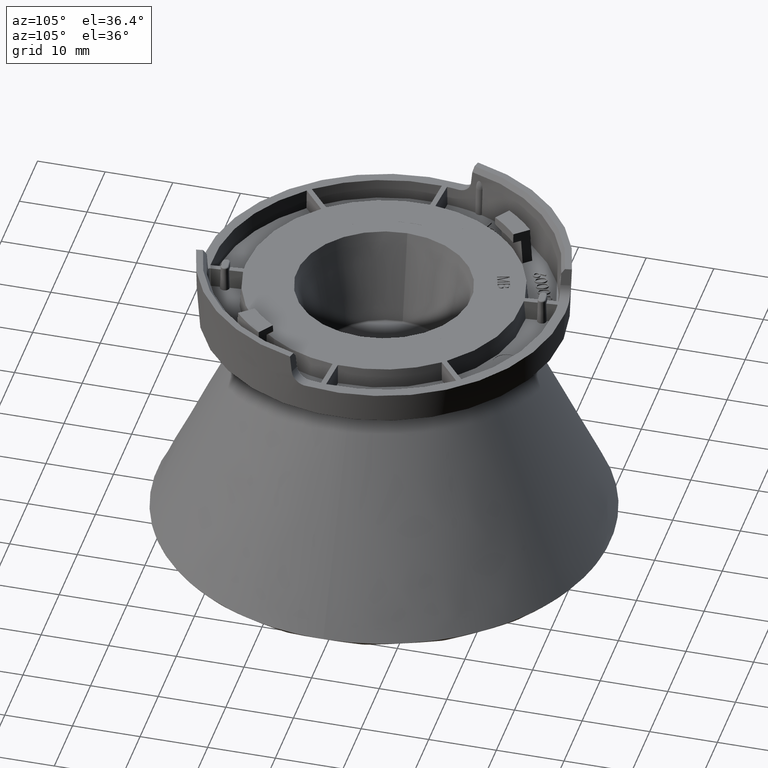
[diagram: clean part render]
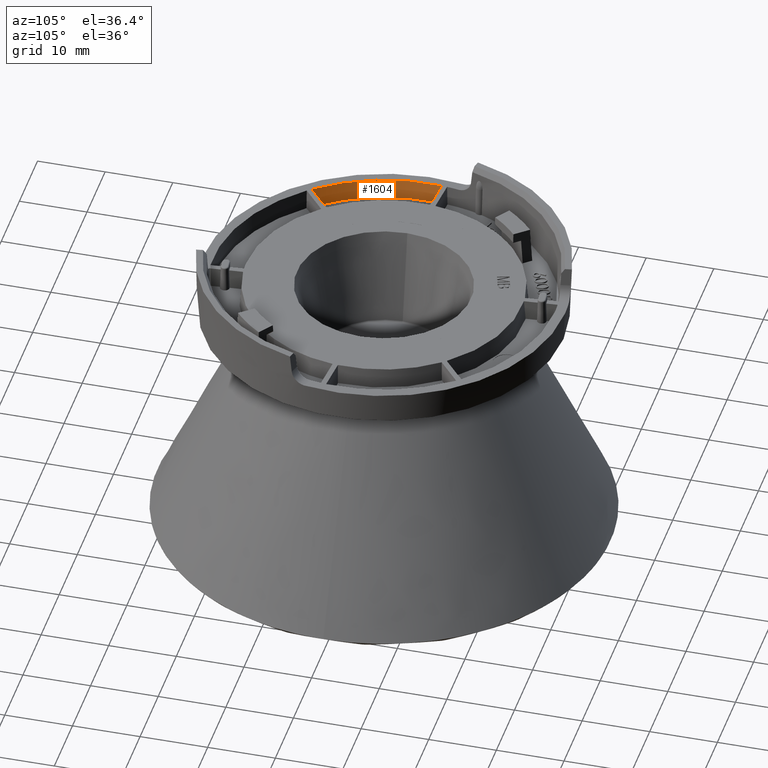
[diagram: same view with one face highlighted and labeled with its STEP entity id]
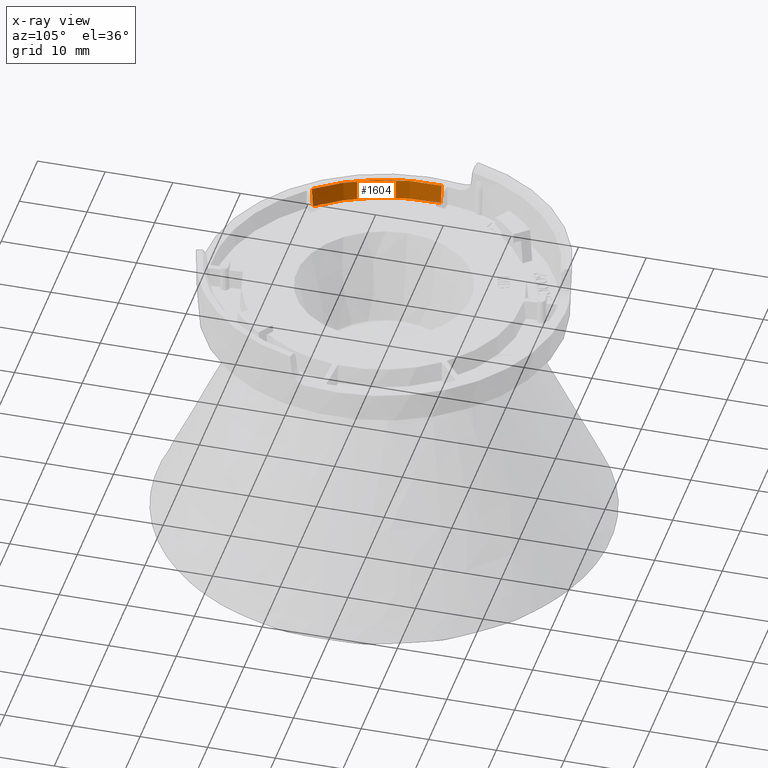
[diagram: x-ray of the same camera — body ghosted, the highlighted face saturated]
A machine part, auxiliary view. The second image highlights one B-rep face of the part: STEP entity #1604.
The next image is the same camera in x-ray: the body ghosted, the highlighted face saturated — about 0% of this face is hidden behind the body in this view.
In plain terms, the highlighted conical surface has half-angle 2.5 deg.
Its self-contained STEP definition (entity closure, byte-faithful):
#430 = B_SPLINE_CURVE_WITH_KNOTS ( 'NONE', 3,
 ( #24405, #5391, #673, #17312 ),
 .UNSPECIFIED., .F., .F.,
 ( 4, 4 ),
 ( 2.003185753689083900E-007, 0.003004968843584663700 ),
 .UNSPECIFIED. ) ;
#673 = CARTESIAN_POINT ( 'NONE',  ( 25.14670301037927300, -1.763469225120719400, -1.000003342401506700 ) ) ;
#780 = AXIS2_PLACEMENT_3D ( 'NONE', #10777, #27397, #13186 ) ;
#1604 = ADVANCED_FACE ( 'NONE', ( #15653 ), #8595, .F. ) ;
#3535 = AXIS2_PLACEMENT_3D ( 'NONE', #25176, #6174, #17996 ) ;
#4629 = DIRECTION ( 'NONE',  ( -0.0000000000000000000, -0.0000000000000000000, -1.000000000000000000 ) ) ;
#5091 = ORIENTED_EDGE ( 'NONE', *, *, #24614, .F. ) ;
#5181 = CIRCLE ( 'NONE', #780, 25.12111390044120900 ) ;
#5391 = CARTESIAN_POINT ( 'NONE',  ( 25.10562010438200200, -1.724820774602280300, -2.000003365819040400 ) ) ;
#5853 = ORIENTED_EDGE ( 'NONE', *, *, #16216, .F. ) ;
#6174 = DIRECTION ( 'NONE',  ( 0.0000000000000000000, -3.481099576323616500E-016, 1.000000000000000000 ) ) ;
#7207 = VERTEX_POINT ( 'NONE', #15486 ) ;
#8173 = CARTESIAN_POINT ( 'NONE',  ( 19.57600347840654800, 15.81288257540236600, -2.000003365819035000 ) ) ;
#8595 = CONICAL_SURFACE ( 'NONE', #3535, 25.12111390044120900, 0.04363323129985476800 ) ;
#9148 = CIRCLE ( 'NONE', #11269, 25.25209672916673000 ) ;
#9692 = VERTEX_POINT ( 'NONE', #11353 ) ;
#10563 = CARTESIAN_POINT ( 'NONE',  ( 19.58748878432069100, 15.86810571947001200, -1.000003342401503100 ) ) ;
#10777 = CARTESIAN_POINT ( 'NONE',  ( 0.0000000000000000000, -5.991357901425129300E-015, -2.999999999999988900 ) ) ;
#11269 = AXIS2_PLACEMENT_3D ( 'NONE', #18832, #4629, #21230 ) ;
#11353 = CARTESIAN_POINT ( 'NONE',  ( 19.59891639812395800, 15.92328060540732300, 0.0000000000000000000 ) ) ;
#12124 = EDGE_CURVE ( 'NONE', #13092, #7207, #5181, .T. ) ;
#13092 = VERTEX_POINT ( 'NONE', #21796 ) ;
#13162 = EDGE_CURVE ( 'NONE', #7207, #15981, #430, .T. ) ;
#13186 = DIRECTION ( 'NONE',  ( 0.0000000000000000000, 1.000000000000000000, 3.452720056227959900E-016 ) ) ;
#13469 = B_SPLINE_CURVE_WITH_KNOTS ( 'NONE', 3,
 ( #24800, #8173, #10563, #27182 ),
 .UNSPECIFIED., .F., .F.,
 ( 4, 4 ),
 ( 2.003185753679651700E-007, 0.003004968843584657200 ),
 .UNSPECIFIED. ) ;
#13495 = ORIENTED_EDGE ( 'NONE', *, *, #12124, .T. ) ;
#15486 = CARTESIAN_POINT ( 'NONE',  ( 25.06446106649479300, -1.686165782213384200, -2.999999999999989800 ) ) ;
#15653 = FACE_OUTER_BOUND ( 'NONE', #29850, .T. ) ;
#15981 = VERTEX_POINT ( 'NONE', #22709 ) ;
#16216 = EDGE_CURVE ( 'NONE', #9692, #15981, #9148, .T. ) ;
#17312 = CARTESIAN_POINT ( 'NONE',  ( 25.18771097803955800, -1.802111235728407700, 0.0000000000000000000 ) ) ;
#17996 = DIRECTION ( 'NONE',  ( 0.0000000000000000000, -1.000000000000000000, -3.452720056227959900E-016 ) ) ;
#18832 = CARTESIAN_POINT ( 'NONE',  ( 1.428131667581446200E-015, -5.991357901425129300E-015, 0.0000000000000000000 ) ) ;
#21089 = ORIENTED_EDGE ( 'NONE', *, *, #13162, .T. ) ;
#21230 = DIRECTION ( 'NONE',  ( 1.000000000000000000, 0.0000000000000000000, 0.0000000000000000000 ) ) ;
#21796 = CARTESIAN_POINT ( 'NONE',  ( 19.56445956116187200, 15.75761040509004300, -2.999999999999982700 ) ) ;
#22709 = CARTESIAN_POINT ( 'NONE',  ( 25.18771097803955800, -1.802111235728407700, 0.0000000000000000000 ) ) ;
#24405 = CARTESIAN_POINT ( 'NONE',  ( 25.06446106649479300, -1.686165782213384200, -2.999999999999989800 ) ) ;
#24614 = EDGE_CURVE ( 'NONE', #13092, #9692, #13469, .T. ) ;
#24800 = CARTESIAN_POINT ( 'NONE',  ( 19.56445956116187200, 15.75761040509004300, -2.999999999999982700 ) ) ;
#25176 = CARTESIAN_POINT ( 'NONE',  ( 0.0000000000000000000, -5.991357901425129300E-015, -2.999999999999988900 ) ) ;
#27182 = CARTESIAN_POINT ( 'NONE',  ( 19.59891639812395800, 15.92328060540732300, 0.0000000000000000000 ) ) ;
#27397 = DIRECTION ( 'NONE',  ( -0.0000000000000000000, 3.481099576323616500E-016, -1.000000000000000000 ) ) ;
#29850 = EDGE_LOOP ( 'NONE', ( #13495, #21089, #5853, #5091 ) ) ;